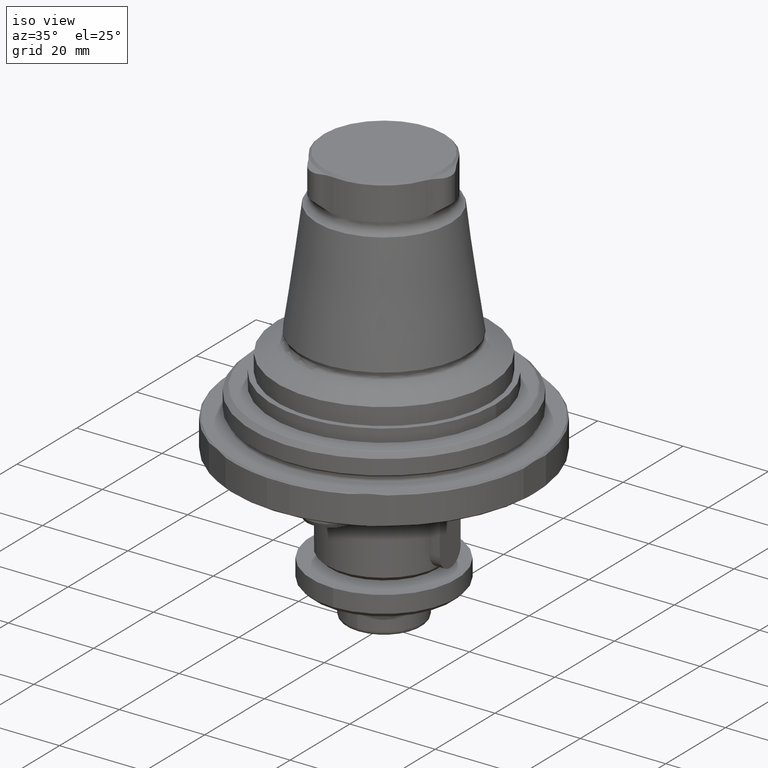
[diagram: clean part render]
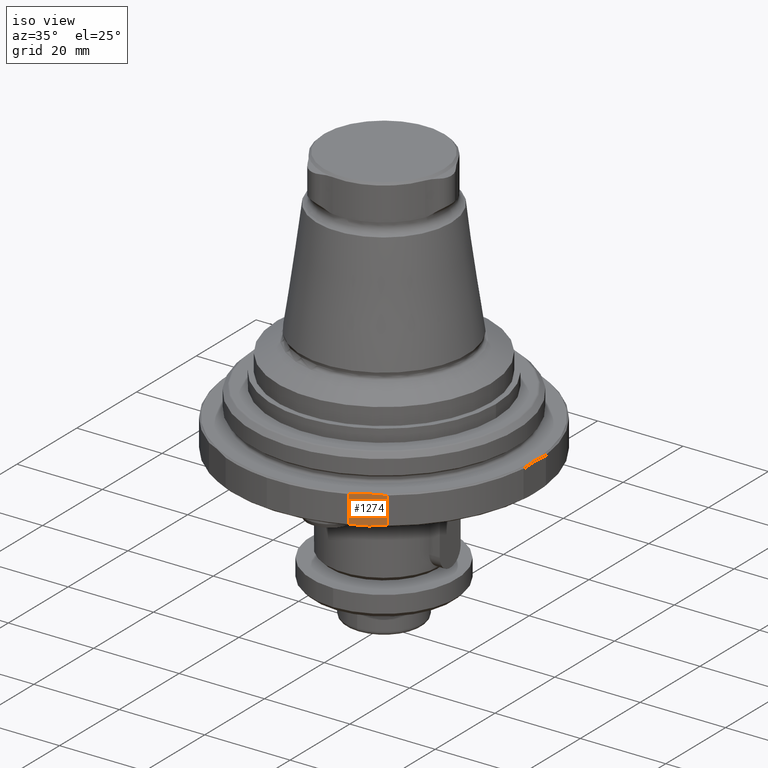
[diagram: same view with one face highlighted and labeled with its STEP entity id]
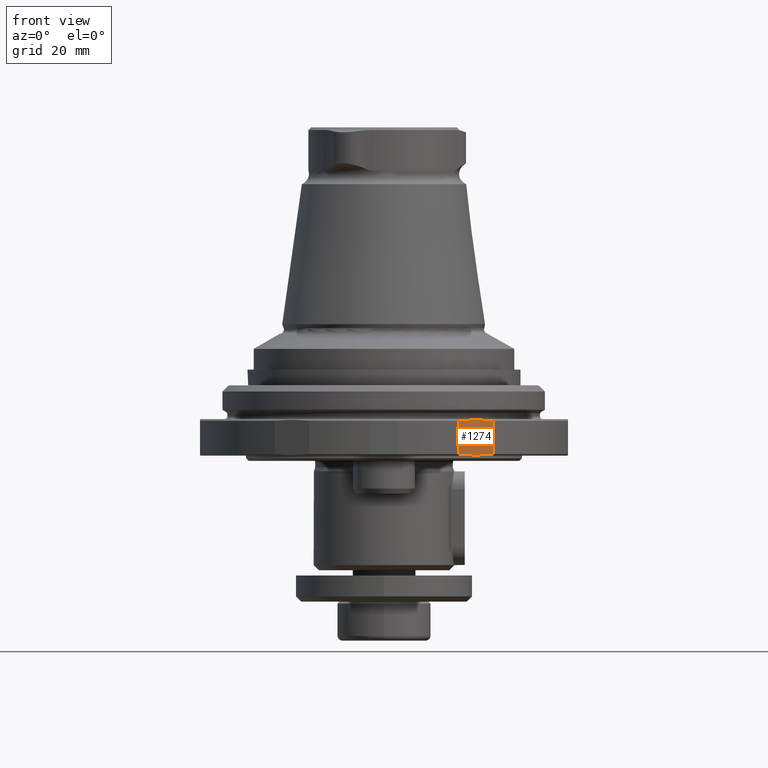
[diagram: same view with one face highlighted and labeled with its STEP entity id]
A machine part, iso view. The second image highlights one B-rep face of the part: STEP entity #1274.
A second angle (front view) of the same face is appended — the face is thin or edge-on in the first view.
In plain terms, the highlighted planar face has unit normal (-0.5, 0.866, 0).
Its self-contained STEP definition (entity closure, byte-faithful):
#188=LINE('',#2296,#232);
#189=LINE('',#2303,#233);
#232=VECTOR('',#1777,1000.);
#233=VECTOR('',#1780,1000.);
#502=ORIENTED_EDGE('',*,*,#717,.F.);
#503=ORIENTED_EDGE('',*,*,#718,.F.);
#504=ORIENTED_EDGE('',*,*,#719,.F.);
#505=ORIENTED_EDGE('',*,*,#701,.F.);
#701=EDGE_CURVE('',#838,#839,#902,.T.);
#717=EDGE_CURVE('',#853,#838,#188,.F.);
#718=EDGE_CURVE('',#854,#853,#909,.T.);
#719=EDGE_CURVE('',#839,#854,#189,.T.);
#838=VERTEX_POINT('',#2242);
#839=VERTEX_POINT('',#2247);
#853=VERTEX_POINT('',#2295);
#854=VERTEX_POINT('',#2302);
#902=B_SPLINE_CURVE_WITH_KNOTS('',3,(#2243,#2244,#2245,#2246),
 .UNSPECIFIED.,.F.,.F.,(4,4),(0.00301971742095615,0.0105389064051034),
 .UNSPECIFIED.);
#909=B_SPLINE_CURVE_WITH_KNOTS('',3,(#2298,#2299,#2300,#2301),
 .UNSPECIFIED.,.F.,.F.,(4,4),(0.0142564267081391,0.0217467200872314),
 .UNSPECIFIED.);
#1028=EDGE_LOOP('',(#502,#503,#504,#505));
#1158=FACE_BOUND('',#1028,.T.);
#1193=PLANE('',#1443);
#1274=ADVANCED_FACE('',(#1158),#1193,.F.);
#1443=AXIS2_PLACEMENT_3D('',#2297,#1778,#1779);
#1777=DIRECTION('',(0.,1.04225259501902E-17,-1.));
#1778=DIRECTION('',(-0.500000000000001,0.866025403784438,9.0261722444673E-18));
#1779=DIRECTION('',(0.,1.04225259501902E-17,-1.));
#1780=DIRECTION('',(0.,1.04225259501902E-17,-1.));
#2242=CARTESIAN_POINT('',(14.39116585264,-32.4521855258134,-1.29888930010697));
#2243=CARTESIAN_POINT('',(14.39116585264,-32.4521855258134,-1.29888930010696));
#2244=CARTESIAN_POINT('',(16.5539924560933,-31.2034770040991,-1.03416467324676));
#2245=CARTESIAN_POINT('',(18.7270089611764,-29.9488853399359,-1.0318392937105));
#2246=CARTESIAN_POINT('',(20.9088341473601,-28.689207981368,-1.29888930010697));
#2247=CARTESIAN_POINT('',(20.9088341473601,-28.689207981368,-1.29888930010697));
#2295=CARTESIAN_POINT('',(14.39116585264,-32.4521855258134,-7.69888930010697));
#2296=CARTESIAN_POINT('',(14.39116585264,-32.4521855258134,-0.998889300106967));
#2297=CARTESIAN_POINT('',(17.65,-30.5706967535907,-4.49888930010696));
#2298=CARTESIAN_POINT('',(20.9088341473601,-28.689207981368,-7.69888930010697));
#2299=CARTESIAN_POINT('',(18.7270089611764,-29.9488853399359,-7.96593930650343));
#2300=CARTESIAN_POINT('',(16.5539924560933,-31.2034770040991,-7.96361392696717));
#2301=CARTESIAN_POINT('',(14.39116585264,-32.4521855258134,-7.69888930010697));
#2302=CARTESIAN_POINT('',(20.9088341473601,-28.689207981368,-7.69888930010697));
#2303=CARTESIAN_POINT('',(20.9088341473601,-28.689207981368,-0.998889300106967));